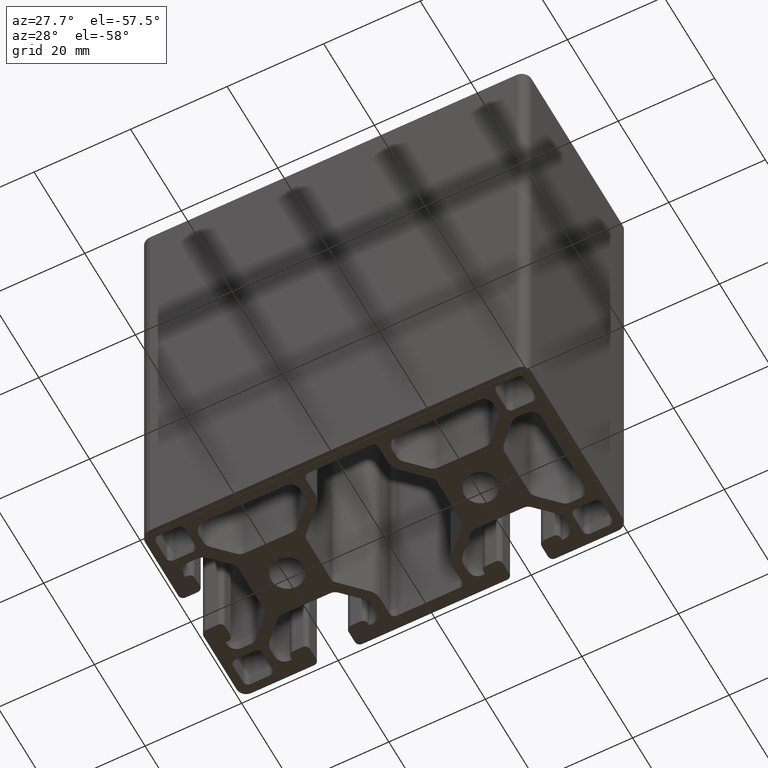
[diagram: clean part render]
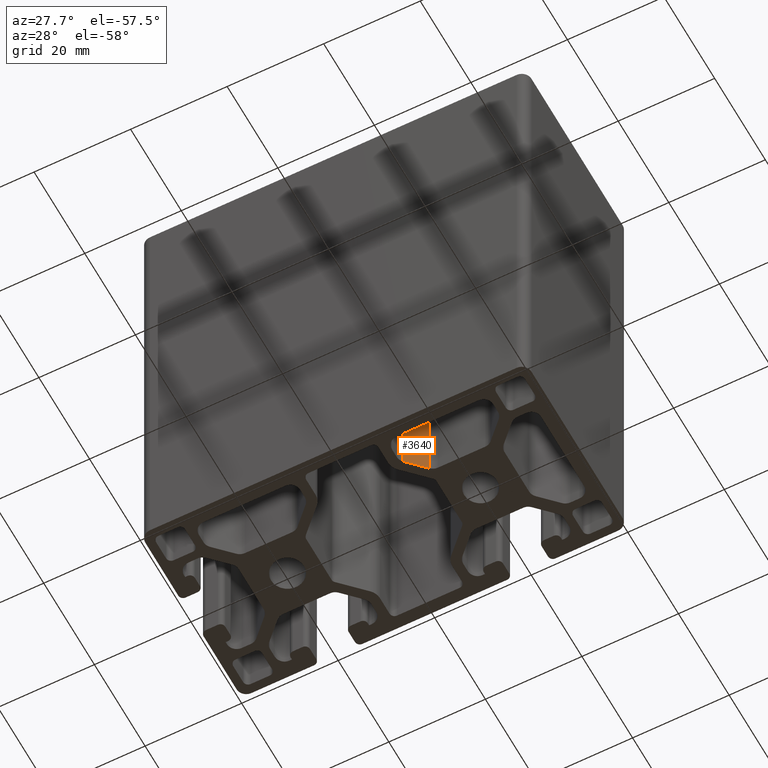
[diagram: same view with one face highlighted and labeled with its STEP entity id]
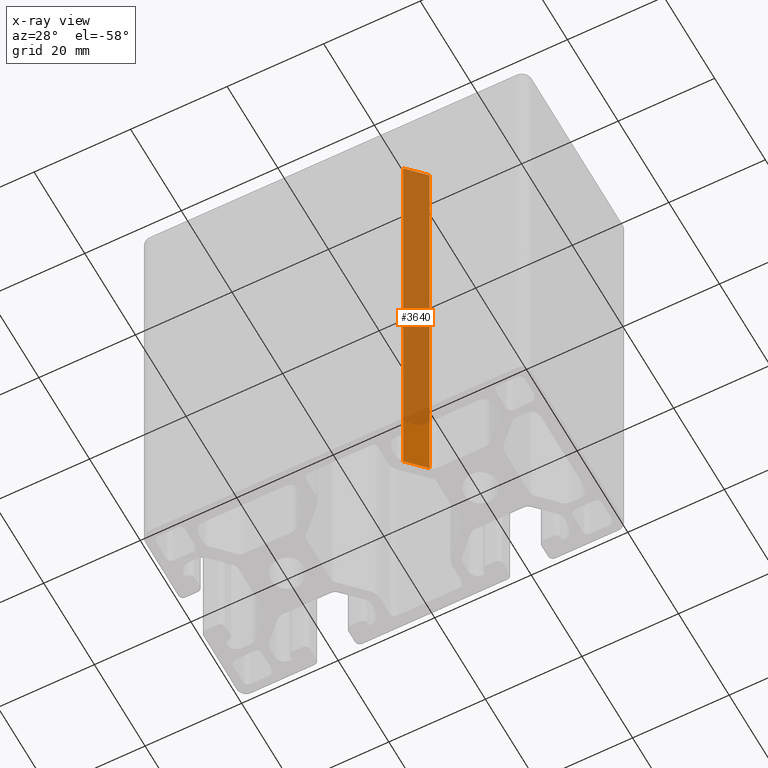
[diagram: x-ray of the same camera — body ghosted, the highlighted face saturated]
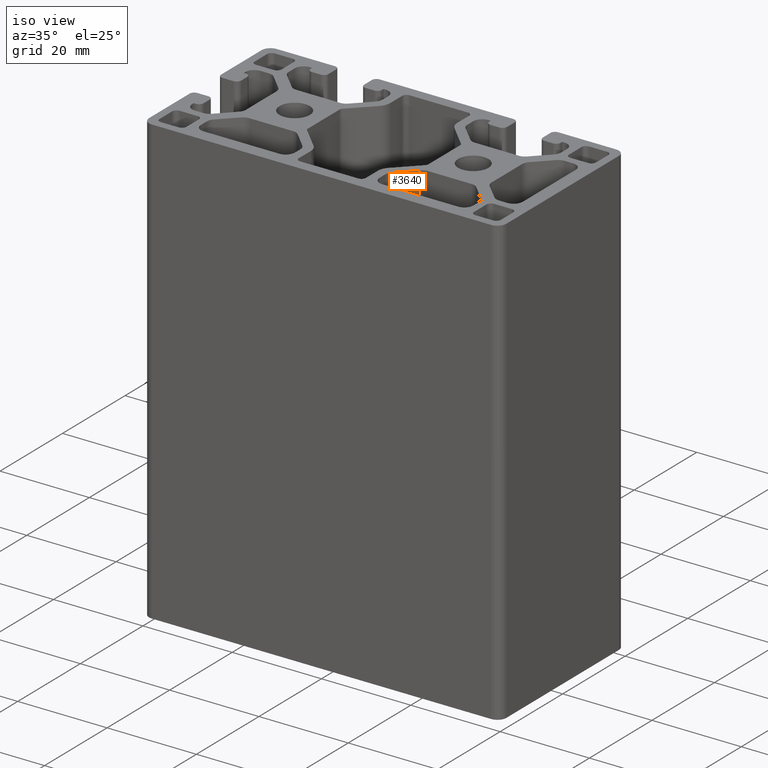
[diagram: same view with one face highlighted and labeled with its STEP entity id]
A machine part, auxiliary view. The second image highlights one B-rep face of the part: STEP entity #3640.
The next image is the same camera in x-ray: the body ghosted, the highlighted face saturated — about 86% of this face is hidden behind the body in this view.
A second angle (iso view) of the same face is appended — the face is thin or edge-on in the first view.
In plain terms, the highlighted planar face has unit normal (-0.7071, 0.7071, 0).
Its self-contained STEP definition (entity closure, byte-faithful):
#118=PLANE('',#3984);
#292=FACE_OUTER_BOUND('',#476,.T.);
#476=EDGE_LOOP('',(#2955,#2956,#2957,#2958));
#841=LINE('',#6076,#1203);
#842=LINE('',#6080,#1204);
#843=LINE('',#6082,#1205);
#844=LINE('',#6083,#1206);
#1203=VECTOR('',#4987,100.);
#1204=VECTOR('',#4992,5.08578643762693);
#1205=VECTOR('',#4993,100.);
#1206=VECTOR('',#4994,5.08578643762693);
#1745=VERTEX_POINT('',#6073);
#1746=VERTEX_POINT('',#6075);
#1747=VERTEX_POINT('',#6079);
#1748=VERTEX_POINT('',#6081);
#2260=EDGE_CURVE('',#1746,#1745,#841,.T.);
#2262=EDGE_CURVE('',#1747,#1745,#842,.T.);
#2263=EDGE_CURVE('',#1748,#1747,#843,.T.);
#2264=EDGE_CURVE('',#1746,#1748,#844,.T.);
#2955=ORIENTED_EDGE('',*,*,#2262,.F.);
#2956=ORIENTED_EDGE('',*,*,#2263,.F.);
#2957=ORIENTED_EDGE('',*,*,#2264,.F.);
#2958=ORIENTED_EDGE('',*,*,#2260,.T.);
#3640=ADVANCED_FACE('',(#292),#118,.F.);
#3984=AXIS2_PLACEMENT_3D('',#6078,#4990,#4991);
#4987=DIRECTION('',(0.,0.,1.));
#4990=DIRECTION('center_axis',(-0.707106781186548,0.707106781186548,0.));
#4991=DIRECTION('ref_axis',(-0.707106781186548,-0.707106781186548,0.));
#4992=DIRECTION('',(0.707106781186548,0.707106781186548,0.));
#4993=DIRECTION('',(0.,0.,1.));
#4994=DIRECTION('',(-0.707106781186548,-0.707106781186548,0.));
#6073=CARTESIAN_POINT('',(13.6819805153395,-8.08578643762691,100.));
#6075=CARTESIAN_POINT('',(13.6819805153395,-8.08578643762691,0.));
#6076=CARTESIAN_POINT('',(13.6819805153395,-8.08578643762691,0.));
#6078=CARTESIAN_POINT('Origin',(13.6819805153395,-8.08578643762691,0.));
#6079=CARTESIAN_POINT('',(10.0857864376269,-11.6819805153395,100.));
#6080=CARTESIAN_POINT('',(12.2829319959113,-9.48483495705505,100.));
#6081=CARTESIAN_POINT('',(10.0857864376269,-11.6819805153395,0.));
#6082=CARTESIAN_POINT('',(10.0857864376269,-11.6819805153395,0.));
#6083=CARTESIAN_POINT('',(12.2829319959113,-9.48483495705505,0.));